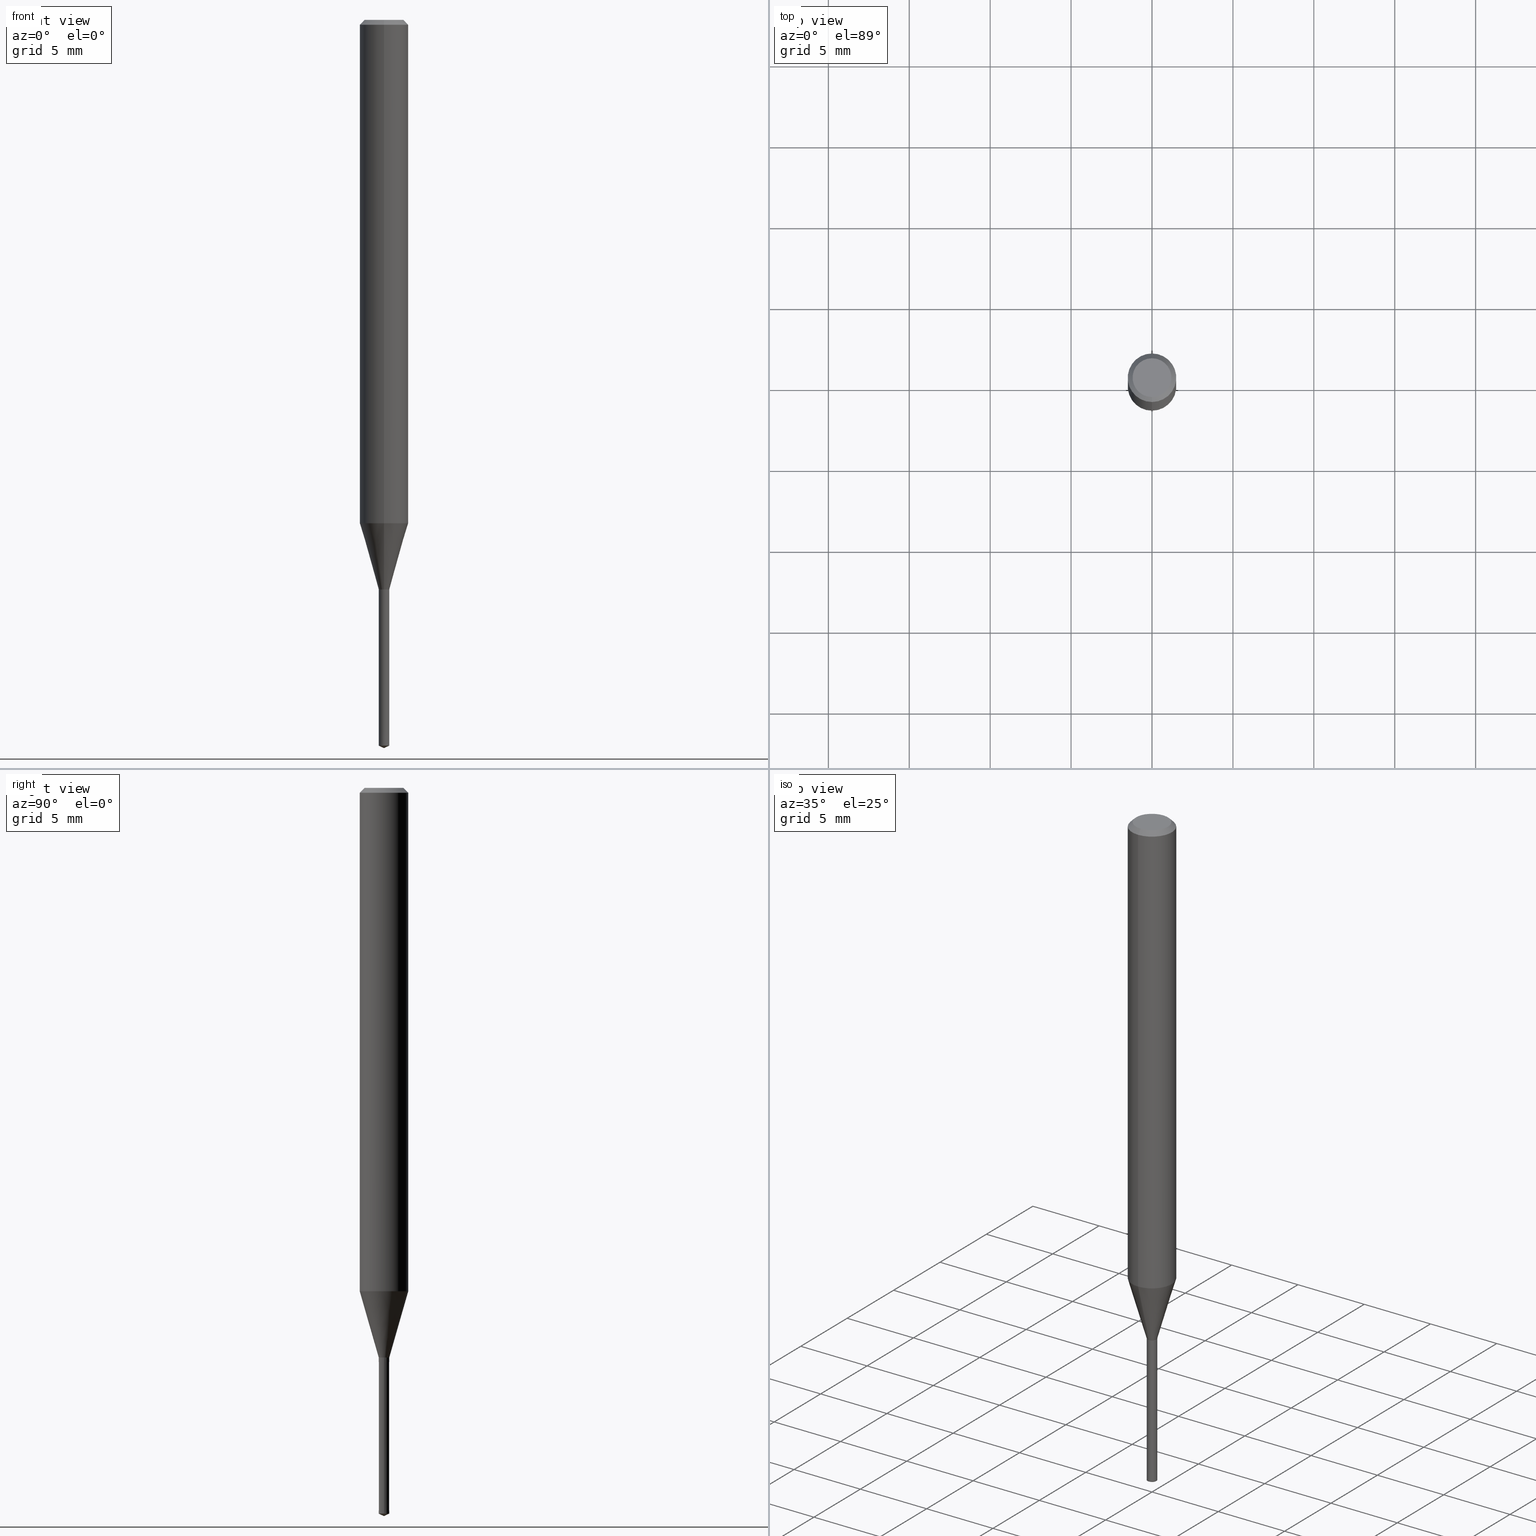
[diagram: canonical four-view strip — front | top / right | iso, engineering-drawing reading convention]
A machine part, canonical four-view strip (front | top / right | iso — engineering-drawing reading convention). The complete STEP part file that produces these views, byte-faithful:
ISO-10303-21;
HEADER;
FILE_DESCRIPTION(('no description'),'unknown implementation level');
FILE_NAME('UTDLX2065-098-Huellk.stp','  ',('CIMSOURCE GmbH'),('CADClick - KiM GmbH - www.kimweb.de'),'unknown preprocess','ACIS','unknown authorization');
FILE_SCHEMA(('automotive_design'));
ENDSEC;
DATA;
#1=MECHANICAL_DESIGN_GEOMETRIC_PRESENTATION_REPRESENTATION(' ',(#14,#15,#16,#17,#18,#19,#20,#21,#22,#23,#24,#25,#26,#27,#28,#29,#30,#31,#32,#33,#34,#35,#36,#37,#38,#39,#40,#41,#42,#43,#44,#45,#46,#47,#48,#49,#50,#51,#52,#53,#54,#55,#56,#57,#58,#59,#60,#61,#62,#63,#64,#65,#66,#67,#68,#69,#70,#71),#10);
#2=PRODUCT_DEFINITION_CONTEXT('',#72,'design');
#3=APPLICATION_PROTOCOL_DEFINITION('INTERNATIONAL STANDARD','automotive_design',1994,#72);
#4=PRODUCT_CATEGORY_RELATIONSHIP('NONE','NONE',#73,#74);
#5=SHAPE_DEFINITION_REPRESENTATION(#75,#76);
#6=PRODUCT_DEFINITION_CONTEXT('',#77,'design');
#7=APPLICATION_PROTOCOL_DEFINITION('INTERNATIONAL STANDARD','automotive_design',1994,#77);
#8=PRODUCT_CATEGORY_RELATIONSHIP('NONE','NONE',#78,#79);
#9=SHAPE_DEFINITION_REPRESENTATION(#80,#81);
#10= (GEOMETRIC_REPRESENTATION_CONTEXT(3)GLOBAL_UNCERTAINTY_ASSIGNED_CONTEXT((#84))GLOBAL_UNIT_ASSIGNED_CONTEXT((#86,#87,#88))REPRESENTATION_CONTEXT('NONE','WORKSPACE'));
#14=STYLED_ITEM('',(#90),#91);
#15=STYLED_ITEM('',(#92),#93);
#16=STYLED_ITEM('',(#94),#95);
#17=STYLED_ITEM('',(#96),#97);
#18=STYLED_ITEM('',(#98),#99);
#19=STYLED_ITEM('',(#100),#101);
#20=STYLED_ITEM('',(#102),#103);
#21=STYLED_ITEM('',(#104),#105);
#22=STYLED_ITEM('',(#106),#107);
#23=STYLED_ITEM('',(#108),#109);
#24=STYLED_ITEM('',(#110),#111);
#25=STYLED_ITEM('',(#112),#113);
#26=STYLED_ITEM('',(#114),#115);
#27=STYLED_ITEM('',(#116),#117);
#28=STYLED_ITEM('',(#118),#119);
#29=STYLED_ITEM('',(#120),#121);
#30=STYLED_ITEM('',(#122),#123);
#31=STYLED_ITEM('',(#124),#125);
#32=STYLED_ITEM('',(#126),#127);
#33=STYLED_ITEM('',(#128),#129);
#34=STYLED_ITEM('',(#130),#131);
#35=STYLED_ITEM('',(#132),#133);
#36=STYLED_ITEM('',(#134),#135);
#37=STYLED_ITEM('',(#136),#137);
#38=STYLED_ITEM('',(#138),#139);
#39=STYLED_ITEM('',(#140),#141);
#40=STYLED_ITEM('',(#142),#143);
#41=STYLED_ITEM('',(#144),#145);
#42=STYLED_ITEM('',(#146),#147);
#43=STYLED_ITEM('',(#148),#149);
#44=STYLED_ITEM('',(#150),#151);
#45=STYLED_ITEM('',(#152),#153);
#46=STYLED_ITEM('',(#154),#155);
#47=STYLED_ITEM('',(#156),#157);
#48=STYLED_ITEM('',(#158),#159);
#49=STYLED_ITEM('',(#160),#161);
#50=STYLED_ITEM('',(#162),#163);
#51=STYLED_ITEM('',(#164),#165);
#52=STYLED_ITEM('',(#166),#167);
#53=STYLED_ITEM('',(#168),#169);
#54=STYLED_ITEM('',(#170),#171);
#55=STYLED_ITEM('',(#172),#173);
#56=STYLED_ITEM('',(#174),#175);
#57=STYLED_ITEM('',(#176),#177);
#58=STYLED_ITEM('',(#178),#179);
#59=STYLED_ITEM('',(#180),#181);
#60=STYLED_ITEM('',(#182),#183);
#61=STYLED_ITEM('',(#184),#185);
#62=STYLED_ITEM('',(#186),#187);
#63=STYLED_ITEM('',(#188),#189);
#64=STYLED_ITEM('',(#190),#191);
#65=STYLED_ITEM('',(#192),#193);
#66=STYLED_ITEM('',(#194),#195);
#67=STYLED_ITEM('',(#196),#197);
#68=STYLED_ITEM('',(#198),#199);
#69=STYLED_ITEM('',(#200),#201);
#70=STYLED_ITEM('',(#202),#203);
#71=STYLED_ITEM('',(#204),#205);
#72=APPLICATION_CONTEXT(' ');
#73=PRODUCT_CATEGORY('part','NONE');
#74=PRODUCT_RELATED_PRODUCT_CATEGORY('detail',' ',(#206));
#75=PRODUCT_DEFINITION_SHAPE('NONE','NONE',#207);
#76=ADVANCED_BREP_SHAPE_REPRESENTATION('1',(#155,#208),#10);
#77=APPLICATION_CONTEXT(' ');
#78=PRODUCT_CATEGORY('part','NONE');
#79=PRODUCT_RELATED_PRODUCT_CATEGORY('detail',' ',(#209));
#80=PRODUCT_DEFINITION_SHAPE('NONE','NONE',#210);
#81=ADVANCED_BREP_SHAPE_REPRESENTATION('2',(#191,#211),#10);
#84=UNCERTAINTY_MEASURE_WITH_UNIT(LENGTH_MEASURE(1.0E-006),#86,'','');
#86= (CONVERSION_BASED_UNIT('MILLIMETRE',#214)LENGTH_UNIT()NAMED_UNIT(#217));
#87= (NAMED_UNIT(#219)PLANE_ANGLE_UNIT()SI_UNIT($,.RADIAN.));
#88= (NAMED_UNIT(#219)SOLID_ANGLE_UNIT()SI_UNIT($,.STERADIAN.));
#90=PRESENTATION_STYLE_ASSIGNMENT((#225));
#91=EDGE_CURVE('',#125,#187,#226,.T.);
#92=PRESENTATION_STYLE_ASSIGNMENT((#227));
#93=EDGE_CURVE('',#183,#201,#228,.T.);
#94=PRESENTATION_STYLE_ASSIGNMENT((#229));
#95=EDGE_CURVE('',#97,#133,#230,.T.);
#96=PRESENTATION_STYLE_ASSIGNMENT((#231));
#97=VERTEX_POINT('',#232);
#98=PRESENTATION_STYLE_ASSIGNMENT((#233));
#99=ADVANCED_FACE('',(#234),#235,.T.);
#100=PRESENTATION_STYLE_ASSIGNMENT((#236));
#101=VERTEX_POINT('',#237);
#102=PRESENTATION_STYLE_ASSIGNMENT((#238));
#103=EDGE_CURVE('',#115,#101,#239,.T.);
#104=PRESENTATION_STYLE_ASSIGNMENT((#240));
#105=EDGE_CURVE('',#141,#97,#241,.T.);
#106=PRESENTATION_STYLE_ASSIGNMENT((#242));
#107=EDGE_CURVE('',#183,#139,#243,.T.);
#108=PRESENTATION_STYLE_ASSIGNMENT((#244));
#109=EDGE_CURVE('',#115,#183,#245,.T.);
#110=PRESENTATION_STYLE_ASSIGNMENT((#246));
#111=VERTEX_POINT('',#247);
#112=PRESENTATION_STYLE_ASSIGNMENT((#248));
#113=ADVANCED_FACE('',(#249),#250,.T.);
#114=PRESENTATION_STYLE_ASSIGNMENT((#251));
#115=VERTEX_POINT('',#252);
#116=PRESENTATION_STYLE_ASSIGNMENT((#253));
#117=ADVANCED_FACE('',(#254),#255,.T.);
#118=PRESENTATION_STYLE_ASSIGNMENT((#256));
#119=EDGE_CURVE('',#131,#167,#257,.T.);
#120=PRESENTATION_STYLE_ASSIGNMENT((#258));
#121=EDGE_CURVE('',#139,#137,#259,.T.);
#122=PRESENTATION_STYLE_ASSIGNMENT((#260));
#123=EDGE_CURVE('',#97,#111,#261,.T.);
#124=PRESENTATION_STYLE_ASSIGNMENT((#262));
#125=VERTEX_POINT('',#263);
#126=PRESENTATION_STYLE_ASSIGNMENT((#264));
#127=EDGE_CURVE('',#111,#97,#265,.T.);
#128=PRESENTATION_STYLE_ASSIGNMENT((#266));
#129=ADVANCED_FACE('',(#267),#268,.T.);
#130=PRESENTATION_STYLE_ASSIGNMENT((#269));
#131=VERTEX_POINT('',#270);
#132=PRESENTATION_STYLE_ASSIGNMENT((#271));
#133=VERTEX_POINT('',#272);
#134=PRESENTATION_STYLE_ASSIGNMENT((#273));
#135=EDGE_CURVE('',#151,#141,#274,.T.);
#136=PRESENTATION_STYLE_ASSIGNMENT((#275));
#137=VERTEX_POINT('',#276);
#138=PRESENTATION_STYLE_ASSIGNMENT((#277));
#139=VERTEX_POINT('',#278);
#140=PRESENTATION_STYLE_ASSIGNMENT((#279));
#141=VERTEX_POINT('',#280);
#142=PRESENTATION_STYLE_ASSIGNMENT((#281));
#143=EDGE_CURVE('',#167,#139,#282,.T.);
#144=PRESENTATION_STYLE_ASSIGNMENT((#283));
#145=EDGE_CURVE('',#137,#131,#284,.T.);
#146=PRESENTATION_STYLE_ASSIGNMENT((#285));
#147=EDGE_CURVE('',#201,#183,#286,.T.);
#148=PRESENTATION_STYLE_ASSIGNMENT((#287));
#149=ADVANCED_FACE('',(#288),#289,.T.);
#150=PRESENTATION_STYLE_ASSIGNMENT((#290));
#151=VERTEX_POINT('',#291);
#152=PRESENTATION_STYLE_ASSIGNMENT((#292));
#153=EDGE_CURVE('',#101,#115,#293,.T.);
#154=PRESENTATION_STYLE_ASSIGNMENT((#294));
#155=MANIFOLD_SOLID_BREP('1',#295);
#156=PRESENTATION_STYLE_ASSIGNMENT((#296));
#157=ADVANCED_FACE('',(#297),#298,.T.);
#158=PRESENTATION_STYLE_ASSIGNMENT((#299));
#159=EDGE_CURVE('',#167,#201,#300,.T.);
#160=PRESENTATION_STYLE_ASSIGNMENT((#301));
#161=EDGE_CURVE('',#201,#101,#302,.T.);
#162=PRESENTATION_STYLE_ASSIGNMENT((#303));
#163=EDGE_CURVE('',#187,#115,#304,.T.);
#164=PRESENTATION_STYLE_ASSIGNMENT((#305));
#165=ADVANCED_FACE('',(#306),#307,.T.);
#166=PRESENTATION_STYLE_ASSIGNMENT((#308));
#167=VERTEX_POINT('',#309);
#168=PRESENTATION_STYLE_ASSIGNMENT((#310));
#169=EDGE_CURVE('',#133,#111,#311,.T.);
#170=PRESENTATION_STYLE_ASSIGNMENT((#312));
#171=EDGE_CURVE('',#141,#151,#313,.T.);
#172=PRESENTATION_STYLE_ASSIGNMENT((#314));
#173=EDGE_CURVE('',#111,#151,#315,.T.);
#174=PRESENTATION_STYLE_ASSIGNMENT((#316));
#175=ADVANCED_FACE('',(#317),#318,.T.);
#176=PRESENTATION_STYLE_ASSIGNMENT((#319));
#177=ADVANCED_FACE('',(#320),#321,.T.);
#178=PRESENTATION_STYLE_ASSIGNMENT((#322));
#179=ADVANCED_FACE('',(#323),#324,.T.);
#180=PRESENTATION_STYLE_ASSIGNMENT((#325));
#181=ADVANCED_FACE('',(#326),#327,.T.);
#182=PRESENTATION_STYLE_ASSIGNMENT((#328));
#183=VERTEX_POINT('',#329);
#184=PRESENTATION_STYLE_ASSIGNMENT((#330));
#185=ADVANCED_FACE('',(#331),#332,.T.);
#186=PRESENTATION_STYLE_ASSIGNMENT((#333));
#187=VERTEX_POINT('',#334);
#188=PRESENTATION_STYLE_ASSIGNMENT((#335));
#189=EDGE_CURVE('',#187,#125,#336,.T.);
#190=PRESENTATION_STYLE_ASSIGNMENT((#337));
#191=MANIFOLD_SOLID_BREP('2',#338);
#192=PRESENTATION_STYLE_ASSIGNMENT((#339));
#193=ADVANCED_FACE('',(#340),#341,.T.);
#194=PRESENTATION_STYLE_ASSIGNMENT((#342));
#195=EDGE_CURVE('',#131,#137,#343,.T.);
#196=PRESENTATION_STYLE_ASSIGNMENT((#344));
#197=ADVANCED_FACE('',(#345),#346,.T.);
#198=PRESENTATION_STYLE_ASSIGNMENT((#347));
#199=ADVANCED_FACE('',(#348),#349,.T.);
#200=PRESENTATION_STYLE_ASSIGNMENT((#350));
#201=VERTEX_POINT('',#351);
#202=PRESENTATION_STYLE_ASSIGNMENT((#352));
#203=EDGE_CURVE('',#101,#125,#353,.T.);
#204=PRESENTATION_STYLE_ASSIGNMENT((#354));
#205=EDGE_CURVE('',#139,#167,#355,.T.);
#206=PRODUCT('1','1','PART-1-DESC',(#356));
#207=PRODUCT_DEFINITION('NONE','NONE',#357,#2);
#208=AXIS2_PLACEMENT_3D('',#358,#359,#360);
#209=PRODUCT('2','2','PART-2-DESC',(#361));
#210=PRODUCT_DEFINITION('NONE','NONE',#362,#6);
#211=AXIS2_PLACEMENT_3D('',#363,#364,#365);
#214=LENGTH_MEASURE_WITH_UNIT(LENGTH_MEASURE(1.0),#366);
#217=DIMENSIONAL_EXPONENTS(1.0,0.0,0.0,0.0,0.0,0.0,0.0);
#219=DIMENSIONAL_EXPONENTS(0.0,0.0,0.0,0.0,0.0,0.0,0.0);
#225=CURVE_STYLE('',#367,POSITIVE_LENGTH_MEASURE(1.0E-006),#368);
#226=CIRCLE('',#369,0.3255);
#227=CURVE_STYLE('',#370,POSITIVE_LENGTH_MEASURE(1.0E-006),#371);
#228=CIRCLE('',#372,1.5);
#229=CURVE_STYLE('',#373,POSITIVE_LENGTH_MEASURE(1.0E-006),#374);
#230=LINE('',#375,#376);
#231=POINT_STYLE(' ',#377,POSITIVE_LENGTH_MEASURE(1.0E-006),#378);
#232=CARTESIAN_POINT('',(-0.325,0.0,-44.84845001));
#233=SURFACE_STYLE_USAGE(.BOTH.,#379);
#234=FACE_OUTER_BOUND('',#380,.T.);
#235=CONICAL_SURFACE('',#381,0.32525,0.523598775598408);
#236=POINT_STYLE(' ',#382,POSITIVE_LENGTH_MEASURE(1.0E-006),#383);
#237=CARTESIAN_POINT('',(0.0,0.325,-35.1991339745962));
#238=CURVE_STYLE('',#384,POSITIVE_LENGTH_MEASURE(1.0E-006),#385);
#239=CIRCLE('',#386,0.325);
#240=CURVE_STYLE('',#387,POSITIVE_LENGTH_MEASURE(1.0E-006),#388);
#241=LINE('',#389,#390);
#242=CURVE_STYLE('',#391,POSITIVE_LENGTH_MEASURE(1.0E-006),#392);
#243=LINE('',#393,#394);
#244=CURVE_STYLE('',#395,POSITIVE_LENGTH_MEASURE(1.0E-006),#396);
#245=LINE('',#397,#398);
#246=POINT_STYLE(' ',#399,POSITIVE_LENGTH_MEASURE(1.0E-006),#400);
#247=CARTESIAN_POINT('',(0.325,3.97997064992273E-017,-44.84845001));
#248=SURFACE_STYLE_USAGE(.BOTH.,#401);
#249=FACE_OUTER_BOUND('',#402,.T.);
#250=CONICAL_SURFACE('',#403,0.9125,0.279290058693806);
#251=POINT_STYLE(' ',#404,POSITIVE_LENGTH_MEASURE(1.0E-006),#405);
#252=CARTESIAN_POINT('',(3.97997064992272E-017,-0.325,-35.1991339745962));
#253=SURFACE_STYLE_USAGE(.BOTH.,#406);
#254=FACE_OUTER_BOUND('',#407,.T.);
#255=PLANE('',#408);
#256=CURVE_STYLE('',#409,POSITIVE_LENGTH_MEASURE(1.0E-006),#410);
#257=LINE('',#411,#412);
#258=CURVE_STYLE('',#413,POSITIVE_LENGTH_MEASURE(1.0E-006),#414);
#259=LINE('',#415,#416);
#260=CURVE_STYLE('',#417,POSITIVE_LENGTH_MEASURE(1.0E-006),#418);
#261=CIRCLE('',#419,0.325);
#262=POINT_STYLE(' ',#420,POSITIVE_LENGTH_MEASURE(1.0E-006),#421);
#263=CARTESIAN_POINT('',(0.0,0.3255,-35.2));
#264=CURVE_STYLE('',#422,POSITIVE_LENGTH_MEASURE(1.0E-006),#423);
#265=CIRCLE('',#424,0.325);
#266=SURFACE_STYLE_USAGE(.BOTH.,#425);
#267=FACE_OUTER_BOUND('',#426,.T.);
#268=CONICAL_SURFACE('',#427,0.3255,0.000103643589942727);
#269=POINT_STYLE(' ',#428,POSITIVE_LENGTH_MEASURE(1.0E-006),#429);
#270=CARTESIAN_POINT('',(0.0,1.2,0.0));
#271=POINT_STYLE(' ',#430,POSITIVE_LENGTH_MEASURE(1.0E-006),#431);
#272=CARTESIAN_POINT('',(0.0,0.0,-45.0));
#273=CURVE_STYLE('',#432,POSITIVE_LENGTH_MEASURE(1.0E-006),#433);
#274=CIRCLE('',#434,0.326);
#275=POINT_STYLE(' ',#435,POSITIVE_LENGTH_MEASURE(1.0E-006),#436);
#276=CARTESIAN_POINT('',(1.46952762458685E-016,-1.2,0.0));
#277=POINT_STYLE(' ',#437,POSITIVE_LENGTH_MEASURE(1.0E-006),#438);
#278=CARTESIAN_POINT('',(1.83690953073357E-016,-1.5,-0.300000000000001));
#279=POINT_STYLE(' ',#439,POSITIVE_LENGTH_MEASURE(1.0E-006),#440);
#280=CARTESIAN_POINT('',(-0.326,0.0,-35.2));
#281=CURVE_STYLE('',#441,POSITIVE_LENGTH_MEASURE(1.0E-006),#442);
#282=CIRCLE('',#443,1.5);
#283=CURVE_STYLE('',#444,POSITIVE_LENGTH_MEASURE(1.0E-006),#445);
#284=CIRCLE('',#446,1.2);
#285=CURVE_STYLE('',#447,POSITIVE_LENGTH_MEASURE(1.0E-006),#448);
#286=CIRCLE('',#449,1.5);
#287=SURFACE_STYLE_USAGE(.BOTH.,#450);
#288=FACE_OUTER_BOUND('',#451,.T.);
#289=CONICAL_SURFACE('',#452,1.35,0.785398163397447);
#290=POINT_STYLE(' ',#453,POSITIVE_LENGTH_MEASURE(1.0E-006),#454);
#291=CARTESIAN_POINT('',(0.326,3.99221671346095E-017,-35.2));
#292=CURVE_STYLE('',#455,POSITIVE_LENGTH_MEASURE(1.0E-006),#456);
#293=CIRCLE('',#457,0.325);
#294=SURFACE_STYLE_USAGE(.BOTH.,#458);
#295=CLOSED_SHELL('',(#99,#113,#177,#185,#175,#149,#157,#165,#199,#117));
#296=SURFACE_STYLE_USAGE(.BOTH.,#459);
#297=FACE_OUTER_BOUND('',#460,.T.);
#298=CYLINDRICAL_SURFACE('',#461,1.5);
#299=CURVE_STYLE('',#462,POSITIVE_LENGTH_MEASURE(1.0E-006),#463);
#300=LINE('',#464,#465);
#301=CURVE_STYLE('',#466,POSITIVE_LENGTH_MEASURE(1.0E-006),#467);
#302=LINE('',#468,#469);
#303=CURVE_STYLE('',#470,POSITIVE_LENGTH_MEASURE(1.0E-006),#471);
#304=LINE('',#472,#473);
#305=SURFACE_STYLE_USAGE(.BOTH.,#474);
#306=FACE_OUTER_BOUND('',#475,.T.);
#307=CONICAL_SURFACE('',#476,0.9125,0.279290058693806);
#308=POINT_STYLE(' ',#477,POSITIVE_LENGTH_MEASURE(1.0E-006),#478);
#309=CARTESIAN_POINT('',(0.0,1.5,-0.300000000000001));
#310=CURVE_STYLE('',#479,POSITIVE_LENGTH_MEASURE(1.0E-006),#480);
#311=LINE('',#481,#482);
#312=CURVE_STYLE('',#483,POSITIVE_LENGTH_MEASURE(1.0E-006),#484);
#313=CIRCLE('',#485,0.326);
#314=CURVE_STYLE('',#486,POSITIVE_LENGTH_MEASURE(1.0E-006),#487);
#315=LINE('',#488,#489);
#316=SURFACE_STYLE_USAGE(.BOTH.,#490);
#317=FACE_OUTER_BOUND('',#491,.T.);
#318=PLANE('',#492);
#319=SURFACE_STYLE_USAGE(.BOTH.,#493);
#320=FACE_OUTER_BOUND('',#494,.T.);
#321=CYLINDRICAL_SURFACE('',#495,1.5);
#322=SURFACE_STYLE_USAGE(.BOTH.,#496);
#323=FACE_OUTER_BOUND('',#497,.T.);
#324=CONICAL_SURFACE('',#498,0.3255,0.000103643589942727);
#325=SURFACE_STYLE_USAGE(.BOTH.,#499);
#326=FACE_OUTER_BOUND('',#500,.T.);
#327=CONICAL_SURFACE('',#501,0.1625,1.13446401101716);
#328=POINT_STYLE(' ',#502,POSITIVE_LENGTH_MEASURE(1.0E-006),#503);
#329=CARTESIAN_POINT('',(1.83690953073357E-016,-1.5,-31.102));
#330=SURFACE_STYLE_USAGE(.BOTH.,#504);
#331=FACE_OUTER_BOUND('',#505,.T.);
#332=CONICAL_SURFACE('',#506,1.35,0.785398163397447);
#333=POINT_STYLE(' ',#507,POSITIVE_LENGTH_MEASURE(1.0E-006),#508);
#334=CARTESIAN_POINT('',(3.98609368169184E-017,-0.3255,-35.2));
#335=CURVE_STYLE('',#509,POSITIVE_LENGTH_MEASURE(1.0E-006),#510);
#336=CIRCLE('',#511,0.3255);
#337=SURFACE_STYLE_USAGE(.BOTH.,#512);
#338=CLOSED_SHELL('',(#193,#129,#197,#179,#181));
#339=SURFACE_STYLE_USAGE(.BOTH.,#513);
#340=FACE_OUTER_BOUND('',#514,.T.);
#341=CONICAL_SURFACE('',#515,0.1625,1.13446401101716);
#342=CURVE_STYLE('',#516,POSITIVE_LENGTH_MEASURE(1.0E-006),#517);
#343=CIRCLE('',#518,1.2);
#344=SURFACE_STYLE_USAGE(.BOTH.,#519);
#345=FACE_OUTER_BOUND('',#520,.T.);
#346=PLANE('',#521);
#347=SURFACE_STYLE_USAGE(.BOTH.,#522);
#348=FACE_OUTER_BOUND('',#523,.T.);
#349=CONICAL_SURFACE('',#524,0.32525,0.523598775598408);
#350=POINT_STYLE(' ',#525,POSITIVE_LENGTH_MEASURE(1.0E-006),#526);
#351=CARTESIAN_POINT('',(0.0,1.5,-31.102));
#352=CURVE_STYLE('',#527,POSITIVE_LENGTH_MEASURE(1.0E-006),#528);
#353=LINE('',#529,#530);
#354=CURVE_STYLE('',#531,POSITIVE_LENGTH_MEASURE(1.0E-006),#532);
#355=CIRCLE('',#533,1.5);
#356=PRODUCT_CONTEXT('',#72,'mechanical');
#357=PRODUCT_DEFINITION_FORMATION_WITH_SPECIFIED_SOURCE(' ','NONE',#206,.NOT_KNOWN.);
#358=CARTESIAN_POINT('',(0.0,0.0,0.0));
#359=DIRECTION('',(0.0,0.0,1.0));
#360=DIRECTION('',(1.0,0.0,0.0));
#361=PRODUCT_CONTEXT('',#77,'mechanical');
#362=PRODUCT_DEFINITION_FORMATION_WITH_SPECIFIED_SOURCE(' ','NONE',#209,.NOT_KNOWN.);
#363=CARTESIAN_POINT('',(0.0,0.0,0.0));
#364=DIRECTION('',(0.0,0.0,1.0));
#365=DIRECTION('',(1.0,0.0,0.0));
#366= (NAMED_UNIT(#217)LENGTH_UNIT()SI_UNIT(.MILLI.,.METRE.));
#367=DRAUGHTING_PRE_DEFINED_CURVE_FONT('continuous');
#368=COLOUR_RGB('',0.498039215803146,0.498039215803146,0.498039215803146);
#369=AXIS2_PLACEMENT_3D('',#535,#536,#537);
#370=DRAUGHTING_PRE_DEFINED_CURVE_FONT('continuous');
#371=COLOUR_RGB('',0.498039215803146,0.498039215803146,0.498039215803146);
#372=AXIS2_PLACEMENT_3D('',#538,#539,#540);
#373=DRAUGHTING_PRE_DEFINED_CURVE_FONT('continuous');
#374=COLOUR_RGB('',0.800000011920929,0.800000011920929,0.800000011920929);
#375=CARTESIAN_POINT('',(-0.1625,-1.98998532496136E-017,-44.924225005));
#376=VECTOR('',#541,1.0);
#377=PRE_DEFINED_MARKER('');
#378=COLOUR_RGB('',0.800000011920929,0.800000011920929,0.800000011920929);
#379=SURFACE_SIDE_STYLE('',(#542));
#380=EDGE_LOOP('',(#543,#544,#545,#546));
#381=AXIS2_PLACEMENT_3D('',#547,#548,#549);
#382=PRE_DEFINED_MARKER('');
#383=COLOUR_RGB('',0.498039215803146,0.498039215803146,0.498039215803146);
#384=DRAUGHTING_PRE_DEFINED_CURVE_FONT('continuous');
#385=COLOUR_RGB('',0.498039215803146,0.498039215803146,0.498039215803146);
#386=AXIS2_PLACEMENT_3D('',#550,#551,#552);
#387=DRAUGHTING_PRE_DEFINED_CURVE_FONT('continuous');
#388=COLOUR_RGB('',0.800000011920929,0.800000011920929,0.800000011920929);
#389=CARTESIAN_POINT('',(-0.3255,-3.98609368169184E-017,-40.024225005));
#390=VECTOR('',#553,1.0);
#391=DRAUGHTING_PRE_DEFINED_CURVE_FONT('continuous');
#392=COLOUR_RGB('',0.498039215803146,0.498039215803146,0.498039215803146);
#393=CARTESIAN_POINT('',(1.83690953073357E-016,-1.5,-15.701));
#394=VECTOR('',#554,1.0);
#395=DRAUGHTING_PRE_DEFINED_CURVE_FONT('continuous');
#396=COLOUR_RGB('',0.498039215803146,0.498039215803146,0.498039215803146);
#397=CARTESIAN_POINT('',(1.11745329786292E-016,-0.9125,-33.1505669872981));
#398=VECTOR('',#555,1.0);
#399=PRE_DEFINED_MARKER('');
#400=COLOUR_RGB('',0.800000011920929,0.800000011920929,0.800000011920929);
#401=SURFACE_SIDE_STYLE('',(#556));
#402=EDGE_LOOP('',(#557,#558,#559,#560));
#403=AXIS2_PLACEMENT_3D('',#561,#562,#563);
#404=PRE_DEFINED_MARKER('');
#405=COLOUR_RGB('',0.498039215803146,0.498039215803146,0.498039215803146);
#406=SURFACE_SIDE_STYLE('',(#564));
#407=EDGE_LOOP('',(#565,#566));
#408=AXIS2_PLACEMENT_3D('',#567,#568,#569);
#409=DRAUGHTING_PRE_DEFINED_CURVE_FONT('continuous');
#410=COLOUR_RGB('',0.498039215803146,0.498039215803146,0.498039215803146);
#411=CARTESIAN_POINT('',(-1.65321857766021E-016,1.35,-0.149999999999999));
#412=VECTOR('',#570,1.0);
#413=DRAUGHTING_PRE_DEFINED_CURVE_FONT('continuous');
#414=COLOUR_RGB('',0.498039215803146,0.498039215803146,0.498039215803146);
#415=CARTESIAN_POINT('',(1.65321857766021E-016,-1.35,-0.149999999999999));
#416=VECTOR('',#571,1.0);
#417=DRAUGHTING_PRE_DEFINED_CURVE_FONT('continuous');
#418=COLOUR_RGB('',0.800000011920929,0.800000011920929,0.800000011920929);
#419=AXIS2_PLACEMENT_3D('',#572,#573,#574);
#420=PRE_DEFINED_MARKER('');
#421=COLOUR_RGB('',0.498039215803146,0.498039215803146,0.498039215803146);
#422=DRAUGHTING_PRE_DEFINED_CURVE_FONT('continuous');
#423=COLOUR_RGB('',0.800000011920929,0.800000011920929,0.800000011920929);
#424=AXIS2_PLACEMENT_3D('',#575,#576,#577);
#425=SURFACE_SIDE_STYLE('',(#578));
#426=EDGE_LOOP('',(#579,#580,#581,#582));
#427=AXIS2_PLACEMENT_3D('',#583,#584,#585);
#428=PRE_DEFINED_MARKER('');
#429=COLOUR_RGB('',0.498039215803146,0.498039215803146,0.498039215803146);
#430=PRE_DEFINED_MARKER('');
#431=COLOUR_RGB('',0.800000011920929,0.800000011920929,0.800000011920929);
#432=DRAUGHTING_PRE_DEFINED_CURVE_FONT('continuous');
#433=COLOUR_RGB('',0.800000011920929,0.800000011920929,0.800000011920929);
#434=AXIS2_PLACEMENT_3D('',#586,#587,#588);
#435=PRE_DEFINED_MARKER('');
#436=COLOUR_RGB('',0.498039215803146,0.498039215803146,0.498039215803146);
#437=PRE_DEFINED_MARKER('');
#438=COLOUR_RGB('',0.498039215803146,0.498039215803146,0.498039215803146);
#439=PRE_DEFINED_MARKER('');
#440=COLOUR_RGB('',0.800000011920929,0.800000011920929,0.800000011920929);
#441=DRAUGHTING_PRE_DEFINED_CURVE_FONT('continuous');
#442=COLOUR_RGB('',0.498039215803146,0.498039215803146,0.498039215803146);
#443=AXIS2_PLACEMENT_3D('',#589,#590,#591);
#444=DRAUGHTING_PRE_DEFINED_CURVE_FONT('continuous');
#445=COLOUR_RGB('',0.498039215803146,0.498039215803146,0.498039215803146);
#446=AXIS2_PLACEMENT_3D('',#592,#593,#594);
#447=DRAUGHTING_PRE_DEFINED_CURVE_FONT('continuous');
#448=COLOUR_RGB('',0.498039215803146,0.498039215803146,0.498039215803146);
#449=AXIS2_PLACEMENT_3D('',#595,#596,#597);
#450=SURFACE_SIDE_STYLE('',(#598));
#451=EDGE_LOOP('',(#599,#600,#601,#602));
#452=AXIS2_PLACEMENT_3D('',#603,#604,#605);
#453=PRE_DEFINED_MARKER('');
#454=COLOUR_RGB('',0.800000011920929,0.800000011920929,0.800000011920929);
#455=DRAUGHTING_PRE_DEFINED_CURVE_FONT('continuous');
#456=COLOUR_RGB('',0.498039215803146,0.498039215803146,0.498039215803146);
#457=AXIS2_PLACEMENT_3D('',#606,#607,#608);
#458=SURFACE_SIDE_STYLE('',(#609));
#459=SURFACE_SIDE_STYLE('',(#610));
#460=EDGE_LOOP('',(#611,#612,#613,#614));
#461=AXIS2_PLACEMENT_3D('',#615,#616,#617);
#462=DRAUGHTING_PRE_DEFINED_CURVE_FONT('continuous');
#463=COLOUR_RGB('',0.498039215803146,0.498039215803146,0.498039215803146);
#464=CARTESIAN_POINT('',(-1.83690953073357E-016,1.5,-15.701));
#465=VECTOR('',#618,1.0);
#466=DRAUGHTING_PRE_DEFINED_CURVE_FONT('continuous');
#467=COLOUR_RGB('',0.498039215803146,0.498039215803146,0.498039215803146);
#468=CARTESIAN_POINT('',(-1.11745329786292E-016,0.9125,-33.1505669872981));
#469=VECTOR('',#619,1.0);
#470=DRAUGHTING_PRE_DEFINED_CURVE_FONT('continuous');
#471=COLOUR_RGB('',0.498039215803146,0.498039215803146,0.498039215803146);
#472=CARTESIAN_POINT('',(3.98303216580728E-017,-0.32525,-35.1995669872981));
#473=VECTOR('',#620,1.0);
#474=SURFACE_SIDE_STYLE('',(#621));
#475=EDGE_LOOP('',(#622,#623,#624,#625));
#476=AXIS2_PLACEMENT_3D('',#626,#627,#628);
#477=PRE_DEFINED_MARKER('');
#478=COLOUR_RGB('',0.498039215803146,0.498039215803146,0.498039215803146);
#479=DRAUGHTING_PRE_DEFINED_CURVE_FONT('continuous');
#480=COLOUR_RGB('',0.800000011920929,0.800000011920929,0.800000011920929);
#481=CARTESIAN_POINT('',(0.1625,1.98998532496136E-017,-44.924225005));
#482=VECTOR('',#629,1.0);
#483=DRAUGHTING_PRE_DEFINED_CURVE_FONT('continuous');
#484=COLOUR_RGB('',0.800000011920929,0.800000011920929,0.800000011920929);
#485=AXIS2_PLACEMENT_3D('',#630,#631,#632);
#486=DRAUGHTING_PRE_DEFINED_CURVE_FONT('continuous');
#487=COLOUR_RGB('',0.800000011920929,0.800000011920929,0.800000011920929);
#488=CARTESIAN_POINT('',(0.3255,3.98609368169184E-017,-40.024225005));
#489=VECTOR('',#633,1.0);
#490=SURFACE_SIDE_STYLE('',(#634));
#491=EDGE_LOOP('',(#635,#636));
#492=AXIS2_PLACEMENT_3D('',#637,#638,#639);
#493=SURFACE_SIDE_STYLE('',(#640));
#494=EDGE_LOOP('',(#641,#642,#643,#644));
#495=AXIS2_PLACEMENT_3D('',#645,#646,#647);
#496=SURFACE_SIDE_STYLE('',(#648));
#497=EDGE_LOOP('',(#649,#650,#651,#652));
#498=AXIS2_PLACEMENT_3D('',#653,#654,#655);
#499=SURFACE_SIDE_STYLE('',(#656));
#500=EDGE_LOOP('',(#657,#658,#659));
#501=AXIS2_PLACEMENT_3D('',#660,#661,#662);
#502=PRE_DEFINED_MARKER('');
#503=COLOUR_RGB('',0.498039215803146,0.498039215803146,0.498039215803146);
#504=SURFACE_SIDE_STYLE('',(#663));
#505=EDGE_LOOP('',(#664,#665,#666,#667));
#506=AXIS2_PLACEMENT_3D('',#668,#669,#670);
#507=PRE_DEFINED_MARKER('');
#508=COLOUR_RGB('',0.498039215803146,0.498039215803146,0.498039215803146);
#509=DRAUGHTING_PRE_DEFINED_CURVE_FONT('continuous');
#510=COLOUR_RGB('',0.498039215803146,0.498039215803146,0.498039215803146);
#511=AXIS2_PLACEMENT_3D('',#671,#672,#673);
#512=SURFACE_SIDE_STYLE('',(#674));
#513=SURFACE_SIDE_STYLE('',(#675));
#514=EDGE_LOOP('',(#676,#677,#678));
#515=AXIS2_PLACEMENT_3D('',#679,#680,#681);
#516=DRAUGHTING_PRE_DEFINED_CURVE_FONT('continuous');
#517=COLOUR_RGB('',0.498039215803146,0.498039215803146,0.498039215803146);
#518=AXIS2_PLACEMENT_3D('',#682,#683,#684);
#519=SURFACE_SIDE_STYLE('',(#685));
#520=EDGE_LOOP('',(#686,#687));
#521=AXIS2_PLACEMENT_3D('',#688,#689,#690);
#522=SURFACE_SIDE_STYLE('',(#691));
#523=EDGE_LOOP('',(#692,#693,#694,#695));
#524=AXIS2_PLACEMENT_3D('',#696,#697,#698);
#525=PRE_DEFINED_MARKER('');
#526=COLOUR_RGB('',0.498039215803146,0.498039215803146,0.498039215803146);
#527=DRAUGHTING_PRE_DEFINED_CURVE_FONT('continuous');
#528=COLOUR_RGB('',0.498039215803146,0.498039215803146,0.498039215803146);
#529=CARTESIAN_POINT('',(-3.98303216580728E-017,0.32525,-35.1995669872981));
#530=VECTOR('',#699,1.0);
#531=DRAUGHTING_PRE_DEFINED_CURVE_FONT('continuous');
#532=COLOUR_RGB('',0.498039215803146,0.498039215803146,0.498039215803146);
#533=AXIS2_PLACEMENT_3D('',#700,#701,#702);
#535=CARTESIAN_POINT('',(0.0,0.0,-35.2));
#536=DIRECTION('',(0.0,0.0,-1.0));
#537=DIRECTION('',(0.0,1.0,0.0));
#538=CARTESIAN_POINT('',(0.0,0.0,-31.102));
#539=DIRECTION('',(0.0,0.0,-1.0));
#540=DIRECTION('',(0.0,1.0,0.0));
#541=DIRECTION('',(0.906307785862129,1.10987027308545E-016,-0.422618264259469));
#542=SURFACE_STYLE_FILL_AREA(#703);
#543=ORIENTED_EDGE('',*,*,#203,.F.);
#544=ORIENTED_EDGE('',*,*,#153,.T.);
#545=ORIENTED_EDGE('',*,*,#163,.F.);
#546=ORIENTED_EDGE('',*,*,#91,.F.);
#547=CARTESIAN_POINT('',(0.0,0.0,-35.1995669872981));
#548=DIRECTION('',(0.0,-0.0,-1.0));
#549=DIRECTION('',(0.0,1.0,0.0));
#550=CARTESIAN_POINT('',(0.0,0.0,-35.1991339745962));
#551=DIRECTION('',(0.0,0.0,-1.0));
#552=DIRECTION('',(0.0,1.0,0.0));
#553=DIRECTION('',(0.00010364358975717,1.2692259854959E-020,-0.999999994629003));
#554=DIRECTION('',(-0.0,-0.0,1.0));
#555=DIRECTION('',(3.3759125764446E-017,-0.275673286024307,0.961251392390441));
#556=SURFACE_STYLE_FILL_AREA(#704);
#557=ORIENTED_EDGE('',*,*,#161,.F.);
#558=ORIENTED_EDGE('',*,*,#147,.T.);
#559=ORIENTED_EDGE('',*,*,#109,.F.);
#560=ORIENTED_EDGE('',*,*,#153,.F.);
#561=CARTESIAN_POINT('',(0.0,0.0,-33.1505669872981));
#562=DIRECTION('',(-0.0,-0.0,1.0));
#563=DIRECTION('',(0.0,1.0,0.0));
#564=SURFACE_STYLE_FILL_AREA(#705);
#565=ORIENTED_EDGE('',*,*,#91,.T.);
#566=ORIENTED_EDGE('',*,*,#189,.T.);
#567=CARTESIAN_POINT('',(0.0,0.16275,-35.2));
#568=DIRECTION('',(0.0,0.0,-1.0));
#569=DIRECTION('',(0.0,1.0,0.0));
#570=DIRECTION('',(-8.65927457071934E-017,0.707106781186546,-0.707106781186549));
#571=DIRECTION('',(-8.65927457071934E-017,0.707106781186546,0.707106781186549));
#572=CARTESIAN_POINT('',(0.0,0.0,-44.84845001));
#573=DIRECTION('',(0.0,0.0,-1.0));
#574=DIRECTION('',(-1.0,0.0,0.0));
#575=CARTESIAN_POINT('',(0.0,0.0,-44.84845001));
#576=DIRECTION('',(0.0,0.0,-1.0));
#577=DIRECTION('',(-1.0,0.0,0.0));
#578=SURFACE_STYLE_FILL_AREA(#706);
#579=ORIENTED_EDGE('',*,*,#105,.F.);
#580=ORIENTED_EDGE('',*,*,#171,.T.);
#581=ORIENTED_EDGE('',*,*,#173,.F.);
#582=ORIENTED_EDGE('',*,*,#123,.F.);
#583=CARTESIAN_POINT('',(0.0,0.0,-40.024225005));
#584=DIRECTION('',(-0.0,-0.0,1.0));
#585=DIRECTION('',(-1.0,0.0,0.0));
#586=CARTESIAN_POINT('',(0.0,0.0,-35.2));
#587=DIRECTION('',(0.0,0.0,-1.0));
#588=DIRECTION('',(-1.0,0.0,0.0));
#589=CARTESIAN_POINT('',(0.0,0.0,-0.300000000000001));
#590=DIRECTION('',(0.0,0.0,-1.0));
#591=DIRECTION('',(0.0,1.0,0.0));
#592=CARTESIAN_POINT('',(0.0,0.0,0.0));
#593=DIRECTION('',(0.0,0.0,-1.0));
#594=DIRECTION('',(0.0,1.0,0.0));
#595=CARTESIAN_POINT('',(0.0,0.0,-31.102));
#596=DIRECTION('',(0.0,0.0,-1.0));
#597=DIRECTION('',(0.0,1.0,0.0));
#598=SURFACE_STYLE_FILL_AREA(#707);
#599=ORIENTED_EDGE('',*,*,#119,.T.);
#600=ORIENTED_EDGE('',*,*,#205,.F.);
#601=ORIENTED_EDGE('',*,*,#121,.T.);
#602=ORIENTED_EDGE('',*,*,#145,.T.);
#603=CARTESIAN_POINT('',(0.0,0.0,-0.149999999999999));
#604=DIRECTION('',(0.0,-0.0,-1.0));
#605=DIRECTION('',(0.0,1.0,0.0));
#606=CARTESIAN_POINT('',(0.0,0.0,-35.1991339745962));
#607=DIRECTION('',(0.0,0.0,-1.0));
#608=DIRECTION('',(0.0,1.0,0.0));
#609=SURFACE_STYLE_FILL_AREA(#708);
#610=SURFACE_STYLE_FILL_AREA(#709);
#611=ORIENTED_EDGE('',*,*,#159,.T.);
#612=ORIENTED_EDGE('',*,*,#93,.F.);
#613=ORIENTED_EDGE('',*,*,#107,.T.);
#614=ORIENTED_EDGE('',*,*,#205,.T.);
#615=CARTESIAN_POINT('',(0.0,0.0,-15.701));
#616=DIRECTION('',(-0.0,-0.0,1.0));
#617=DIRECTION('',(0.0,1.0,0.0));
#618=DIRECTION('',(0.0,0.0,-1.0));
#619=DIRECTION('',(3.3759125764446E-017,-0.275673286024307,-0.961251392390441));
#620=DIRECTION('',(-6.12303176911299E-017,0.50000000000009,0.866025403784387));
#621=SURFACE_STYLE_FILL_AREA(#710);
#622=ORIENTED_EDGE('',*,*,#161,.T.);
#623=ORIENTED_EDGE('',*,*,#103,.F.);
#624=ORIENTED_EDGE('',*,*,#109,.T.);
#625=ORIENTED_EDGE('',*,*,#93,.T.);
#626=CARTESIAN_POINT('',(0.0,0.0,-33.1505669872981));
#627=DIRECTION('',(-0.0,-0.0,1.0));
#628=DIRECTION('',(0.0,1.0,0.0));
#629=DIRECTION('',(0.906307785862129,1.10987027308545E-016,0.422618264259469));
#630=CARTESIAN_POINT('',(0.0,0.0,-35.2));
#631=DIRECTION('',(0.0,0.0,-1.0));
#632=DIRECTION('',(-1.0,0.0,0.0));
#633=DIRECTION('',(0.00010364358975717,1.2692259854959E-020,0.999999994629003));
#634=SURFACE_STYLE_FILL_AREA(#711);
#635=ORIENTED_EDGE('',*,*,#195,.F.);
#636=ORIENTED_EDGE('',*,*,#145,.F.);
#637=CARTESIAN_POINT('',(0.0,0.6,0.0));
#638=DIRECTION('',(-0.0,0.0,1.0));
#639=DIRECTION('',(0.0,-1.0,0.0));
#640=SURFACE_STYLE_FILL_AREA(#712);
#641=ORIENTED_EDGE('',*,*,#159,.F.);
#642=ORIENTED_EDGE('',*,*,#143,.T.);
#643=ORIENTED_EDGE('',*,*,#107,.F.);
#644=ORIENTED_EDGE('',*,*,#147,.F.);
#645=CARTESIAN_POINT('',(0.0,0.0,-15.701));
#646=DIRECTION('',(-0.0,-0.0,1.0));
#647=DIRECTION('',(0.0,1.0,0.0));
#648=SURFACE_STYLE_FILL_AREA(#713);
#649=ORIENTED_EDGE('',*,*,#105,.T.);
#650=ORIENTED_EDGE('',*,*,#127,.F.);
#651=ORIENTED_EDGE('',*,*,#173,.T.);
#652=ORIENTED_EDGE('',*,*,#135,.T.);
#653=CARTESIAN_POINT('',(0.0,0.0,-40.024225005));
#654=DIRECTION('',(-0.0,-0.0,1.0));
#655=DIRECTION('',(-1.0,0.0,0.0));
#656=SURFACE_STYLE_FILL_AREA(#714);
#657=ORIENTED_EDGE('',*,*,#169,.T.);
#658=ORIENTED_EDGE('',*,*,#127,.T.);
#659=ORIENTED_EDGE('',*,*,#95,.T.);
#660=CARTESIAN_POINT('',(0.0,0.0,-44.924225005));
#661=DIRECTION('',(-0.0,-0.0,1.0));
#662=DIRECTION('',(-1.0,0.0,0.0));
#663=SURFACE_STYLE_FILL_AREA(#715);
#664=ORIENTED_EDGE('',*,*,#119,.F.);
#665=ORIENTED_EDGE('',*,*,#195,.T.);
#666=ORIENTED_EDGE('',*,*,#121,.F.);
#667=ORIENTED_EDGE('',*,*,#143,.F.);
#668=CARTESIAN_POINT('',(0.0,0.0,-0.149999999999999));
#669=DIRECTION('',(0.0,-0.0,-1.0));
#670=DIRECTION('',(0.0,1.0,0.0));
#671=CARTESIAN_POINT('',(0.0,0.0,-35.2));
#672=DIRECTION('',(0.0,0.0,-1.0));
#673=DIRECTION('',(0.0,1.0,0.0));
#674=SURFACE_STYLE_FILL_AREA(#716);
#675=SURFACE_STYLE_FILL_AREA(#717);
#676=ORIENTED_EDGE('',*,*,#169,.F.);
#677=ORIENTED_EDGE('',*,*,#95,.F.);
#678=ORIENTED_EDGE('',*,*,#123,.T.);
#679=CARTESIAN_POINT('',(0.0,0.0,-44.924225005));
#680=DIRECTION('',(-0.0,-0.0,1.0));
#681=DIRECTION('',(-1.0,0.0,0.0));
#682=CARTESIAN_POINT('',(0.0,0.0,0.0));
#683=DIRECTION('',(0.0,0.0,-1.0));
#684=DIRECTION('',(0.0,1.0,0.0));
#685=SURFACE_STYLE_FILL_AREA(#718);
#686=ORIENTED_EDGE('',*,*,#171,.F.);
#687=ORIENTED_EDGE('',*,*,#135,.F.);
#688=CARTESIAN_POINT('',(-0.163,0.0,-35.2));
#689=DIRECTION('',(0.0,0.0,1.0));
#690=DIRECTION('',(1.0,0.0,0.0));
#691=SURFACE_STYLE_FILL_AREA(#719);
#692=ORIENTED_EDGE('',*,*,#203,.T.);
#693=ORIENTED_EDGE('',*,*,#189,.F.);
#694=ORIENTED_EDGE('',*,*,#163,.T.);
#695=ORIENTED_EDGE('',*,*,#103,.T.);
#696=CARTESIAN_POINT('',(0.0,0.0,-35.1995669872981));
#697=DIRECTION('',(0.0,-0.0,-1.0));
#698=DIRECTION('',(0.0,1.0,0.0));
#699=DIRECTION('',(-6.12303176911299E-017,0.50000000000009,-0.866025403784387));
#700=CARTESIAN_POINT('',(0.0,0.0,-0.300000000000001));
#701=DIRECTION('',(0.0,0.0,-1.0));
#702=DIRECTION('',(0.0,1.0,0.0));
#703=FILL_AREA_STYLE('',(#720));
#704=FILL_AREA_STYLE('',(#721));
#705=FILL_AREA_STYLE('',(#722));
#706=FILL_AREA_STYLE('',(#723));
#707=FILL_AREA_STYLE('',(#724));
#708=FILL_AREA_STYLE('',(#725));
#709=FILL_AREA_STYLE('',(#726));
#710=FILL_AREA_STYLE('',(#727));
#711=FILL_AREA_STYLE('',(#728));
#712=FILL_AREA_STYLE('',(#729));
#713=FILL_AREA_STYLE('',(#730));
#714=FILL_AREA_STYLE('',(#731));
#715=FILL_AREA_STYLE('',(#732));
#716=FILL_AREA_STYLE('',(#733));
#717=FILL_AREA_STYLE('',(#734));
#718=FILL_AREA_STYLE('',(#735));
#719=FILL_AREA_STYLE('',(#736));
#720=FILL_AREA_STYLE_COLOUR('',#737);
#721=FILL_AREA_STYLE_COLOUR('',#738);
#722=FILL_AREA_STYLE_COLOUR('',#739);
#723=FILL_AREA_STYLE_COLOUR('',#740);
#724=FILL_AREA_STYLE_COLOUR('',#741);
#725=FILL_AREA_STYLE_COLOUR('',#742);
#726=FILL_AREA_STYLE_COLOUR('',#743);
#727=FILL_AREA_STYLE_COLOUR('',#744);
#728=FILL_AREA_STYLE_COLOUR('',#745);
#729=FILL_AREA_STYLE_COLOUR('',#746);
#730=FILL_AREA_STYLE_COLOUR('',#747);
#731=FILL_AREA_STYLE_COLOUR('',#748);
#732=FILL_AREA_STYLE_COLOUR('',#749);
#733=FILL_AREA_STYLE_COLOUR('',#750);
#734=FILL_AREA_STYLE_COLOUR('',#751);
#735=FILL_AREA_STYLE_COLOUR('',#752);
#736=FILL_AREA_STYLE_COLOUR('',#753);
#737=COLOUR_RGB('',0.498039215803146,0.498039215803146,0.498039215803146);
#738=COLOUR_RGB('',0.498039215803146,0.498039215803146,0.498039215803146);
#739=COLOUR_RGB('',0.498039215803146,0.498039215803146,0.498039215803146);
#740=COLOUR_RGB('',0.800000011920929,0.800000011920929,0.800000011920929);
#741=COLOUR_RGB('',0.498039215803146,0.498039215803146,0.498039215803146);
#742=COLOUR_RGB('',0.498039215803146,0.498039215803146,0.498039215803146);
#743=COLOUR_RGB('',0.498039215803146,0.498039215803146,0.498039215803146);
#744=COLOUR_RGB('',0.498039215803146,0.498039215803146,0.498039215803146);
#745=COLOUR_RGB('',0.498039215803146,0.498039215803146,0.498039215803146);
#746=COLOUR_RGB('',0.498039215803146,0.498039215803146,0.498039215803146);
#747=COLOUR_RGB('',0.800000011920929,0.800000011920929,0.800000011920929);
#748=COLOUR_RGB('',0.800000011920929,0.800000011920929,0.800000011920929);
#749=COLOUR_RGB('',0.498039215803146,0.498039215803146,0.498039215803146);
#750=COLOUR_RGB('',0.800000011920929,0.800000011920929,0.800000011920929);
#751=COLOUR_RGB('',0.800000011920929,0.800000011920929,0.800000011920929);
#752=COLOUR_RGB('',0.800000011920929,0.800000011920929,0.800000011920929);
#753=COLOUR_RGB('',0.498039215803146,0.498039215803146,0.498039215803146);
#754=AXIS2_PLACEMENT_3D('PCS',#755,#756,#757);
#755=CARTESIAN_POINT('',(0.0,0.0,0.0));
#756=DIRECTION('',(0.0,0.0,1.0));
#757=DIRECTION('',(1.0,0.0,0.0));
#758=AXIS2_PLACEMENT_3D('CIP',#759,#760,#761);
#759=CARTESIAN_POINT('',(0.0,0.0,-45.0));
#760=DIRECTION('',(0.0,0.0,1.0));
#761=DIRECTION('',(1.0,0.0,0.0));
#762=AXIS2_PLACEMENT_3D('CRP',#763,#764,#765);
#763=CARTESIAN_POINT('',(-0.325,0.0,-44.8485));
#764=DIRECTION('',(0.0,0.0,1.0));
#765=DIRECTION('',(1.0,0.0,0.0));
#766=AXIS2_PLACEMENT_3D('MCS',#767,#768,#769);
#767=CARTESIAN_POINT('',(0.0,0.0,-31.102));
#768=DIRECTION('',(0.0,0.0,1.0));
#769=DIRECTION('',(1.0,0.0,0.0));
#770=CONSTRUCTIVE_GEOMETRY_REPRESENTATION_RELATIONSHIP('coordinate systems',$,#76,#771);
#771=CONSTRUCTIVE_GEOMETRY_REPRESENTATION('coordinate systems',(#754,#758,#762,#766),#10);
ENDSEC;
END-ISO-10303-21;
